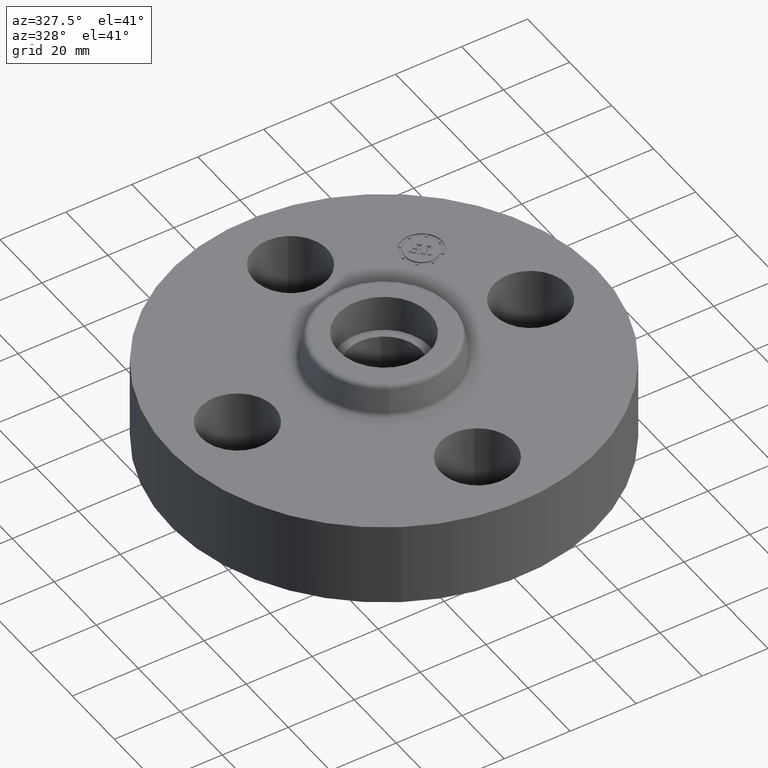
[diagram: clean part render]
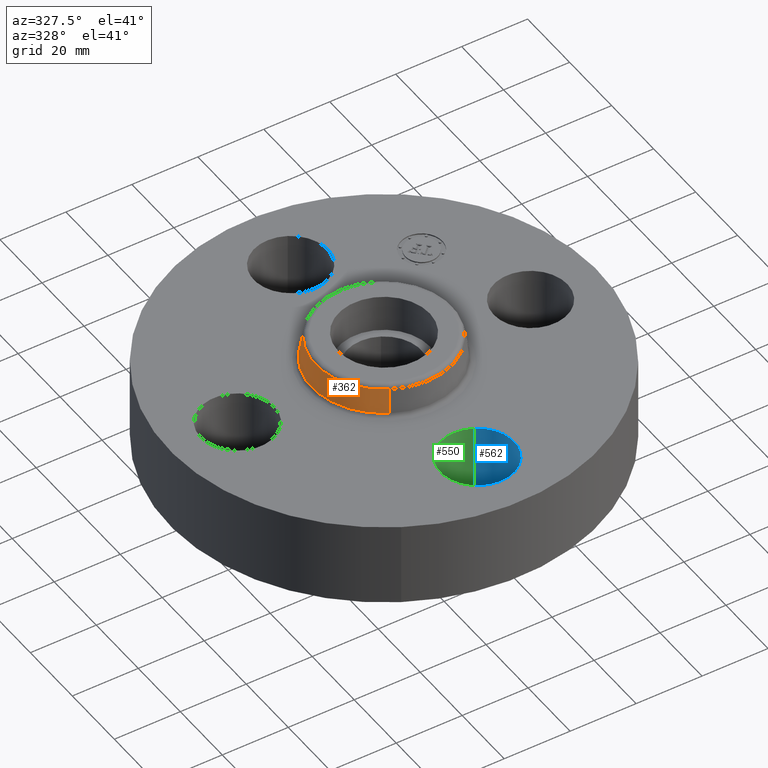
[diagram: same view with three faces highlighted in distinct colors, each labeled with its STEP entity id]
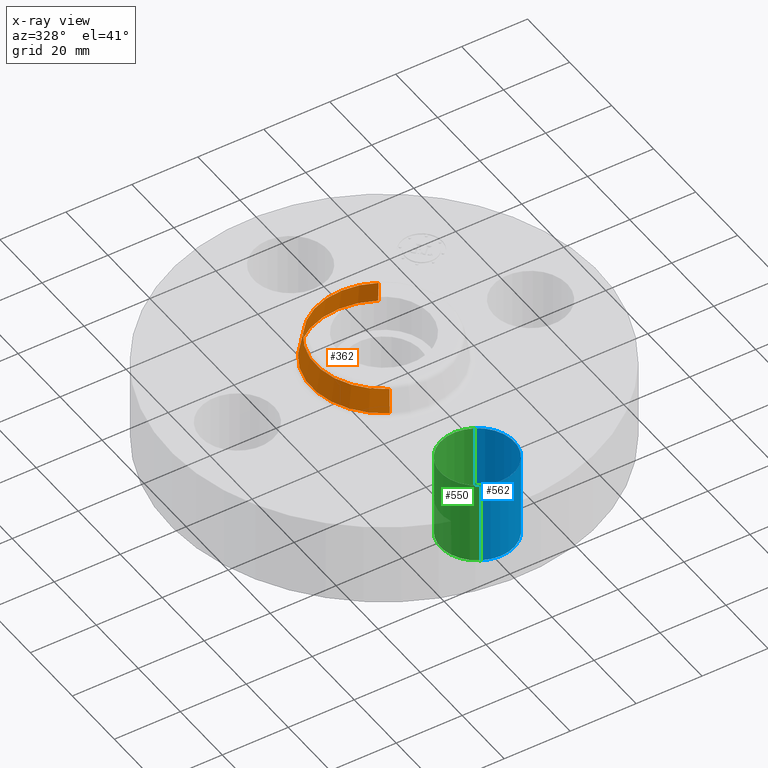
[diagram: x-ray of the same camera — body ghosted, the three highlighted faces saturated]
A machine part, auxiliary view with three faces highlighted in distinct colors.
The next image is the same camera in x-ray (body ghosted, the three faces saturated) — at least one of them is partly hidden behind the body in this view.
Their STEP definitions:

[orange] entity #362 — the highlighted conical surface has half-angle 10 deg.
#310=AXIS2_PLACEMENT_3D('Circle Axis2P3D',#308,#309,$) ;
#323=AXIS2_PLACEMENT_3D('Cone Axis2P3D',#320,#321,#322) ;
#353=AXIS2_PLACEMENT_3D('Circle Axis2P3D',#351,#352,$) ;
#281=CARTESIAN_POINT('Vertex',(0.415305974593,0.760212487246,1.04958110934)) ;
#288=CARTESIAN_POINT('Vertex',(-0.415305974593,-0.760212487246,1.04958110934)) ;
#308=CARTESIAN_POINT('Axis2P3D Location',(0.,0.,1.04958110934)) ;
#320=CARTESIAN_POINT('Axis2P3D Location',(0.,0.,1.33041889067)) ;
#325=CARTESIAN_POINT('Line Origine',(0.403435571318,0.7384838598,1.19)) ;
#329=CARTESIAN_POINT('Vertex',(0.391565168043,0.716755232353,1.33041889067)) ;
#336=CARTESIAN_POINT('Vertex',(-0.391565168043,-0.716755232353,1.33041889067)) ;
#339=CARTESIAN_POINT('Line Origine',(-0.403435571318,-0.7384838598,1.19)) ;
#351=CARTESIAN_POINT('Axis2P3D Location',(0.,0.,1.33041889067)) ;
#309=DIRECTION('Axis2P3D Direction',(0.,0.,-0.0393700787402)) ;
#321=DIRECTION('Axis2P3D Direction',(0.,0.,-0.0393700787402)) ;
#322=DIRECTION('Axis2P3D XDirection',(-0.0188750212049,-0.0345504945626,0.)) ;
#326=DIRECTION('Vector Direction',(0.00327761303565,0.00599963041829,-0.03877195878)) ;
#340=DIRECTION('Vector Direction',(-0.00327761303565,-0.00599963041829,-0.03877195878)) ;
#352=DIRECTION('Axis2P3D Direction',(0.,0.,-0.0393700787402)) ;
#327=VECTOR('Line Direction',#326,0.0393700787402) ;
#341=VECTOR('Line Direction',#340,0.0393700787402) ;
#357=ORIENTED_EDGE('',*,*,#312,.F.) ;
#358=ORIENTED_EDGE('',*,*,#343,.T.) ;
#359=ORIENTED_EDGE('',*,*,#355,.T.) ;
#360=ORIENTED_EDGE('',*,*,#331,.F.) ;
#362=ADVANCED_FACE('PartBody',(#361),#324,.T.) ;
#311=CIRCLE('generated circle',#310,0.866257512693) ;
#354=CIRCLE('generated circle',#353,0.816738234644) ;
#324=CONICAL_SURFACE('Cone',#323,0.816738234644,0.174532925199) ;
#312=EDGE_CURVE('',#289,#282,#311,.T.) ;
#331=EDGE_CURVE('',#282,#330,#328,.F.) ;
#343=EDGE_CURVE('',#289,#337,#342,.F.) ;
#355=EDGE_CURVE('',#337,#330,#354,.T.) ;
#356=EDGE_LOOP('',(#357,#358,#359,#360)) ;
#361=FACE_OUTER_BOUND('',#356,.T.) ;
#328=LINE('Line',#325,#327) ;
#342=LINE('Line',#339,#341) ;
#282=VERTEX_POINT('',#281) ;
#289=VERTEX_POINT('',#288) ;
#330=VERTEX_POINT('',#329) ;
#337=VERTEX_POINT('',#336) ;

[blue] entity #562 — the highlighted cylindrical surface (partial cylindrical patch) has radius 11.176 mm, axis along (0, -0, -1).
#167=AXIS2_PLACEMENT_3D('Circle Axis2P3D',#165,#166,$) ;
#523=AXIS2_PLACEMENT_3D('Cylinder Axis2P3D',#520,#521,#522) ;
#553=AXIS2_PLACEMENT_3D('Circle Axis2P3D',#551,#552,$) ;
#165=CARTESIAN_POINT('Axis2P3D Location',(3.84644197508E-016,-1.75000000001,0.)) ;
#169=CARTESIAN_POINT('Vertex',(0.210947236987,-1.36386367277,0.)) ;
#171=CARTESIAN_POINT('Vertex',(-0.210947236987,-2.13613632724,0.)) ;
#520=CARTESIAN_POINT('Axis2P3D Location',(1.07156594926E-016,-1.75000000001,0.99606299213)) ;
#525=CARTESIAN_POINT('Line Origine',(-0.210947236987,-2.13613632724,0.500000000002)) ;
#529=CARTESIAN_POINT('Vertex',(-0.210947236987,-2.13613632724,1.)) ;
#532=CARTESIAN_POINT('Line Origine',(0.210947236987,-1.36386367277,0.500000000002)) ;
#536=CARTESIAN_POINT('Vertex',(0.210947236987,-1.36386367277,1.)) ;
#551=CARTESIAN_POINT('Axis2P3D Location',(1.07156594926E-016,-1.75000000001,1.)) ;
#166=DIRECTION('Axis2P3D Direction',(0.,0.,-0.0393700787402)) ;
#521=DIRECTION('Axis2P3D Direction',(0.,-0.,-0.0393700787402)) ;
#522=DIRECTION('Axis2P3D XDirection',(0.0188750212049,0.0345504945626,-0.)) ;
#526=DIRECTION('Vector Direction',(0.,0.,-0.0393700787402)) ;
#533=DIRECTION('Vector Direction',(0.,0.,-0.0393700787402)) ;
#552=DIRECTION('Axis2P3D Direction',(0.,-0.,-0.0393700787402)) ;
#527=VECTOR('Line Direction',#526,0.0393700787402) ;
#534=VECTOR('Line Direction',#533,0.0393700787402) ;
#557=ORIENTED_EDGE('',*,*,#538,.F.) ;
#558=ORIENTED_EDGE('',*,*,#173,.T.) ;
#559=ORIENTED_EDGE('',*,*,#531,.T.) ;
#560=ORIENTED_EDGE('',*,*,#555,.F.) ;
#562=ADVANCED_FACE('PartBody',(#561),#524,.F.) ;
#168=CIRCLE('generated circle',#167,0.440000000002) ;
#554=CIRCLE('generated circle',#553,0.440000000002) ;
#524=CYLINDRICAL_SURFACE('generated cylinder',#523,0.440000000002) ;
#173=EDGE_CURVE('',#170,#172,#168,.T.) ;
#531=EDGE_CURVE('',#172,#530,#528,.F.) ;
#538=EDGE_CURVE('',#170,#537,#535,.F.) ;
#555=EDGE_CURVE('',#537,#530,#554,.T.) ;
#556=EDGE_LOOP('',(#557,#558,#559,#560)) ;
#561=FACE_OUTER_BOUND('',#556,.T.) ;
#528=LINE('Line',#525,#527) ;
#535=LINE('Line',#532,#534) ;
#170=VERTEX_POINT('',#169) ;
#172=VERTEX_POINT('',#171) ;
#530=VERTEX_POINT('',#529) ;
#537=VERTEX_POINT('',#536) ;

[green] entity #550 — the highlighted cylindrical surface (partial cylindrical patch) has radius 11.176 mm, axis along (0, -0, -1).
#176=AXIS2_PLACEMENT_3D('Circle Axis2P3D',#174,#175,$) ;
#523=AXIS2_PLACEMENT_3D('Cylinder Axis2P3D',#520,#521,#522) ;
#541=AXIS2_PLACEMENT_3D('Circle Axis2P3D',#539,#540,$) ;
#169=CARTESIAN_POINT('Vertex',(0.210947236987,-1.36386367277,0.)) ;
#171=CARTESIAN_POINT('Vertex',(-0.210947236987,-2.13613632724,0.)) ;
#174=CARTESIAN_POINT('Axis2P3D Location',(3.49676543189E-017,-1.75000000001,0.)) ;
#520=CARTESIAN_POINT('Axis2P3D Location',(1.07156594926E-016,-1.75000000001,0.99606299213)) ;
#525=CARTESIAN_POINT('Line Origine',(-0.210947236987,-2.13613632724,0.500000000002)) ;
#529=CARTESIAN_POINT('Vertex',(-0.210947236987,-2.13613632724,1.)) ;
#532=CARTESIAN_POINT('Line Origine',(0.210947236987,-1.36386367277,0.500000000002)) ;
#536=CARTESIAN_POINT('Vertex',(0.210947236987,-1.36386367277,1.)) ;
#539=CARTESIAN_POINT('Axis2P3D Location',(1.07156594926E-016,-1.75000000001,1.)) ;
#175=DIRECTION('Axis2P3D Direction',(0.,0.,-0.0393700787402)) ;
#521=DIRECTION('Axis2P3D Direction',(0.,-0.,-0.0393700787402)) ;
#522=DIRECTION('Axis2P3D XDirection',(0.0188750212049,0.0345504945626,-0.)) ;
#526=DIRECTION('Vector Direction',(0.,0.,-0.0393700787402)) ;
#533=DIRECTION('Vector Direction',(0.,0.,-0.0393700787402)) ;
#540=DIRECTION('Axis2P3D Direction',(0.,-0.,-0.0393700787402)) ;
#527=VECTOR('Line Direction',#526,0.0393700787402) ;
#534=VECTOR('Line Direction',#533,0.0393700787402) ;
#545=ORIENTED_EDGE('',*,*,#531,.F.) ;
#546=ORIENTED_EDGE('',*,*,#178,.T.) ;
#547=ORIENTED_EDGE('',*,*,#538,.T.) ;
#548=ORIENTED_EDGE('',*,*,#543,.F.) ;
#550=ADVANCED_FACE('PartBody',(#549),#524,.F.) ;
#177=CIRCLE('generated circle',#176,0.440000000002) ;
#542=CIRCLE('generated circle',#541,0.440000000002) ;
#524=CYLINDRICAL_SURFACE('generated cylinder',#523,0.440000000002) ;
#178=EDGE_CURVE('',#172,#170,#177,.T.) ;
#531=EDGE_CURVE('',#172,#530,#528,.F.) ;
#538=EDGE_CURVE('',#170,#537,#535,.F.) ;
#543=EDGE_CURVE('',#530,#537,#542,.T.) ;
#544=EDGE_LOOP('',(#545,#546,#547,#548)) ;
#549=FACE_OUTER_BOUND('',#544,.T.) ;
#528=LINE('Line',#525,#527) ;
#535=LINE('Line',#532,#534) ;
#170=VERTEX_POINT('',#169) ;
#172=VERTEX_POINT('',#171) ;
#530=VERTEX_POINT('',#529) ;
#537=VERTEX_POINT('',#536) ;